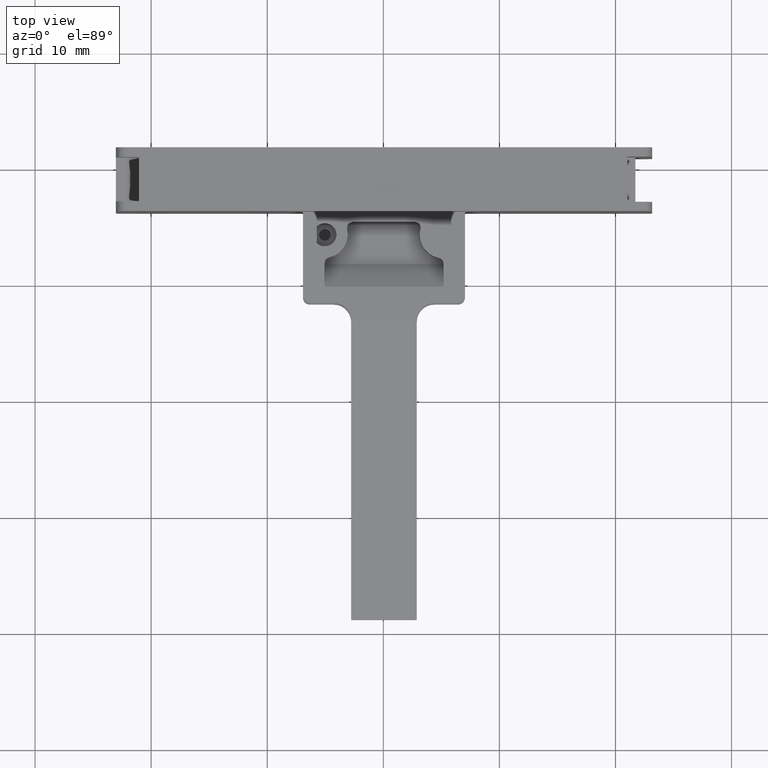
[diagram: clean part render]
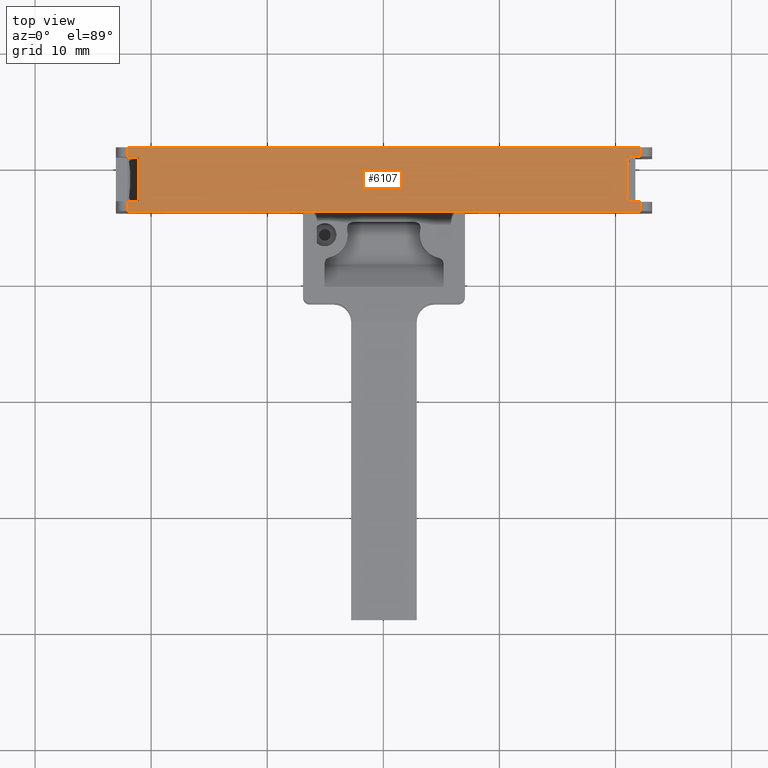
[diagram: same view with one face highlighted and labeled with its STEP entity id]
A machine part, top view. The second image highlights one B-rep face of the part: STEP entity #6107.
In plain terms, the highlighted planar face has unit normal (0, 0, 1).
Its self-contained STEP definition (entity closure, byte-faithful):
#24 = CARTESIAN_POINT ( 'NONE',  ( -461.0397386158801400, 150.8840659342125700, 21.87606308538599000 ) ) ;
#34 = CARTESIAN_POINT ( 'NONE',  ( -417.8397411142743700, 150.9340546013608600, 21.87606308538599700 ) ) ;
#115 = PLANE ( 'NONE',  #7324 ) ;
#129 = CARTESIAN_POINT ( 'NONE',  ( -417.0397416578553600, 148.7340579013505200, 21.87606308538600400 ) ) ;
#132 = DIRECTION ( 'NONE',  ( 0.0000000000000000000, 0.0000000000000000000, 1.000000000000000000 ) ) ;
#169 = FACE_OUTER_BOUND ( 'NONE', #5219, .T. ) ;
#178 = DIRECTION ( 'NONE',  ( 1.000000000000000000, 0.0000000000000000000, -0.0000000000000000000 ) ) ;
#1177 = CARTESIAN_POINT ( 'NONE',  ( -418.9897419644083800, 150.9340548421409100, 21.87606308538600100 ) ) ;
#1527 = ORIENTED_EDGE ( 'NONE', *, *, #6796, .T. ) ;
#1568 = ORIENTED_EDGE ( 'NONE', *, *, #6791, .T. ) ;
#1572 = ORIENTED_EDGE ( 'NONE', *, *, #6810, .T. ) ;
#1595 = ORIENTED_EDGE ( 'NONE', *, *, #6792, .T. ) ;
#1602 = ORIENTED_EDGE ( 'NONE', *, *, #6751, .F. ) ;
#1605 = ORIENTED_EDGE ( 'NONE', *, *, #6923, .T. ) ;
#1610 = ORIENTED_EDGE ( 'NONE', *, *, #6793, .T. ) ;
#1622 = ORIENTED_EDGE ( 'NONE', *, *, #6885, .T. ) ;
#1632 = ORIENTED_EDGE ( 'NONE', *, *, #6926, .F. ) ;
#1633 = ORIENTED_EDGE ( 'NONE', *, *, #6806, .T. ) ;
#1637 = ORIENTED_EDGE ( 'NONE', *, *, #6933, .T. ) ;
#1643 = ORIENTED_EDGE ( 'NONE', *, *, #6831, .T. ) ;
#2040 = CARTESIAN_POINT ( 'NONE',  ( -462.0397420750198300, 147.0840691996355900, 21.87606308538599400 ) ) ;
#2054 = CARTESIAN_POINT ( 'NONE',  ( -461.0397403226602400, 147.0840690258155200, 21.87606308538600400 ) ) ;
#2085 = CARTESIAN_POINT ( 'NONE',  ( -462.0397409767971900, 150.8840658275504200, 21.87606308538595100 ) ) ;
#2114 = CARTESIAN_POINT ( 'NONE',  ( -417.8397416072888900, 147.0340695800658800, 21.87606308538592600 ) ) ;
#2132 = CARTESIAN_POINT ( 'NONE',  ( -462.0397408566045100, 151.7340656000043600, 21.87606308538599000 ) ) ;
#2133 = CARTESIAN_POINT ( 'NONE',  ( -462.0397421824720800, 146.2340692786447400, 21.87606308538599000 ) ) ;
#2134 = CARTESIAN_POINT ( 'NONE',  ( -418.9897420876619100, 147.0340691154928500, 21.87606308538586600 ) ) ;
#2140 = CARTESIAN_POINT ( 'NONE',  ( -417.8397410005014200, 151.7340544921309500, 21.87606308538600400 ) ) ;
#2155 = CARTESIAN_POINT ( 'NONE',  ( -417.8397416578555400, 146.2340581036135100, 21.87606308538599700 ) ) ;
#2614 = DIRECTION ( 'NONE',  ( 0.0000000000000000000, -1.000000000000000000, -0.0000000000000000000 ) ) ;
#2616 = LINE ( 'NONE', #2634, #7240 ) ;
#2634 = CARTESIAN_POINT ( 'NONE',  ( -462.0397420750198300, 148.7340579013505200, 21.87606308538600400 ) ) ;
#2638 = LINE ( 'NONE', #2644, #7217 ) ;
#2644 = CARTESIAN_POINT ( 'NONE',  ( -463.0397416578523500, 146.2340695314733800, 21.87606308538599700 ) ) ;
#2647 = DIRECTION ( 'NONE',  ( -0.9999999999999680300, 2.528287578918313700E-007, -0.0000000000000000000 ) ) ;
#2653 = CARTESIAN_POINT ( 'NONE',  ( -417.8397416578554300, 148.7340579013505200, 21.87606308538600400 ) ) ;
#2685 = LINE ( 'NONE', #2653, #7260 ) ;
#2691 = DIRECTION ( 'NONE',  ( -0.0000000000000000000, 1.000000000000000000, 0.0000000000000000000 ) ) ;
#2856 = LINE ( 'NONE', #2896, #7222 ) ;
#2891 = DIRECTION ( 'NONE',  ( -0.9999999999999680300, -2.528287585658855200E-007, -0.0000000000000000000 ) ) ;
#2896 = CARTESIAN_POINT ( 'NONE',  ( -417.6326348261063700, 147.0340694586086000, 21.87606308538586600 ) ) ;
#3714 = LINE ( 'NONE', #3729, #7064 ) ;
#3725 = DIRECTION ( 'NONE',  ( -0.9999999999999680300, 2.528287592326140100E-007, -0.0000000000000000000 ) ) ;
#3729 = CARTESIAN_POINT ( 'NONE',  ( -418.1897393492720900, 150.9340546398773000, 21.87606308538599700 ) ) ;
#3851 = LINE ( 'NONE', #3887, #7105 ) ;
#3853 = LINE ( 'NONE', #3889, #7110 ) ;
#3855 = DIRECTION ( 'NONE',  ( -0.0000000000000000000, 1.000000000000000000, 0.0000000000000000000 ) ) ;
#3870 = LINE ( 'NONE', #3883, #7115 ) ;
#3880 = DIRECTION ( 'NONE',  ( -0.9999999999999680300, 2.528287574338795100E-007, -0.0000000000000000000 ) ) ;
#3883 = CARTESIAN_POINT ( 'NONE',  ( -417.8397411016329100, 148.7340579013505200, 21.87606308538600400 ) ) ;
#3887 = CARTESIAN_POINT ( 'NONE',  ( -461.0397403226602900, 147.0840690258155200, 21.87606308538600400 ) ) ;
#3889 = CARTESIAN_POINT ( 'NONE',  ( -417.8397410005014200, 151.7340545118832200, 21.87606308538600400 ) ) ;
#3890 = DIRECTION ( 'NONE',  ( -0.9999999999999684700, 2.508624702242045600E-007, 0.0000000000000000000 ) ) ;
#3896 = CARTESIAN_POINT ( 'NONE',  ( -461.7397393619118000, 150.8840659539648100, 21.87606308538597200 ) ) ;
#3929 = CARTESIAN_POINT ( 'NONE',  ( -418.9897420876619100, 148.7340579013505200, 21.87606308538600400 ) ) ;
#3931 = LINE ( 'NONE', #3929, #7101 ) ;
#3933 = DIRECTION ( 'NONE',  ( -0.0000000000000000000, 1.000000000000000000, 0.0000000000000000000 ) ) ;
#3935 = LINE ( 'NONE', #3896, #7111 ) ;
#3942 = DIRECTION ( 'NONE',  ( 1.000000000000000000, 0.0000000000000000000, -0.0000000000000000000 ) ) ;
#3947 = LINE ( 'NONE', #3991, #7095 ) ;
#3961 = DIRECTION ( 'NONE',  ( 0.0000000000000000000, -1.000000000000000000, -0.0000000000000000000 ) ) ;
#3991 = CARTESIAN_POINT ( 'NONE',  ( -461.0397386158801400, 148.7340579013505200, 21.87606308538600400 ) ) ;
#4015 = CARTESIAN_POINT ( 'NONE',  ( -462.0397408393229700, 148.7340579013505200, 21.87606308538600400 ) ) ;
#4019 = DIRECTION ( 'NONE',  ( 0.0000000000000000000, -1.000000000000000000, -0.0000000000000000000 ) ) ;
#4033 = LINE ( 'NONE', #4015, #7138 ) ;
#4643 = VERTEX_POINT ( 'NONE', #2040 ) ;
#4653 = VERTEX_POINT ( 'NONE', #2054 ) ;
#4655 = VERTEX_POINT ( 'NONE', #2085 ) ;
#4712 = VERTEX_POINT ( 'NONE', #2155 ) ;
#4713 = VERTEX_POINT ( 'NONE', #2132 ) ;
#4730 = VERTEX_POINT ( 'NONE', #2134 ) ;
#4753 = VERTEX_POINT ( 'NONE', #2114 ) ;
#4755 = VERTEX_POINT ( 'NONE', #2140 ) ;
#4814 = VERTEX_POINT ( 'NONE', #2133 ) ;
#5219 = EDGE_LOOP ( 'NONE', ( #1602, #1568, #1610, #1643, #1527, #1572, #1595, #1605, #1632, #1637, #1622, #1633 ) ) ;
#6036 = VERTEX_POINT ( 'NONE', #1177 ) ;
#6076 = VERTEX_POINT ( 'NONE', #34 ) ;
#6088 = VERTEX_POINT ( 'NONE', #24 ) ;
#6107 = ADVANCED_FACE ( 'NONE', ( #169 ), #115, .T. ) ;
#6751 = EDGE_CURVE ( 'NONE', #6076, #6036, #3714, .T. ) ;
#6791 = EDGE_CURVE ( 'NONE', #6076, #4755, #3870, .T. ) ;
#6792 = EDGE_CURVE ( 'NONE', #4653, #4643, #3851, .T. ) ;
#6793 = EDGE_CURVE ( 'NONE', #4755, #4713, #3853, .T. ) ;
#6796 = EDGE_CURVE ( 'NONE', #4655, #6088, #3935, .T. ) ;
#6806 = EDGE_CURVE ( 'NONE', #4730, #6036, #3931, .T. ) ;
#6810 = EDGE_CURVE ( 'NONE', #6088, #4653, #3947, .T. ) ;
#6831 = EDGE_CURVE ( 'NONE', #4713, #4655, #4033, .T. ) ;
#6885 = EDGE_CURVE ( 'NONE', #4753, #4730, #2856, .T. ) ;
#6923 = EDGE_CURVE ( 'NONE', #4643, #4814, #2616, .T. ) ;
#6926 = EDGE_CURVE ( 'NONE', #4712, #4814, #2638, .T. ) ;
#6933 = EDGE_CURVE ( 'NONE', #4712, #4753, #2685, .T. ) ;
#7064 = VECTOR ( 'NONE', #3725, 1000.000000000000100 ) ;
#7095 = VECTOR ( 'NONE', #3961, 1000.000000000000000 ) ;
#7101 = VECTOR ( 'NONE', #3933, 1000.000000000000000 ) ;
#7105 = VECTOR ( 'NONE', #3880, 1000.000000000000100 ) ;
#7110 = VECTOR ( 'NONE', #3890, 1000.000000000000100 ) ;
#7111 = VECTOR ( 'NONE', #3942, 1000.000000000000000 ) ;
#7115 = VECTOR ( 'NONE', #3855, 1000.000000000000000 ) ;
#7138 = VECTOR ( 'NONE', #4019, 1000.000000000000000 ) ;
#7217 = VECTOR ( 'NONE', #2647, 1000.000000000000100 ) ;
#7222 = VECTOR ( 'NONE', #2891, 1000.000000000000100 ) ;
#7240 = VECTOR ( 'NONE', #2614, 1000.000000000000000 ) ;
#7260 = VECTOR ( 'NONE', #2691, 1000.000000000000000 ) ;
#7324 = AXIS2_PLACEMENT_3D ( 'NONE', #129, #132, #178 ) ;